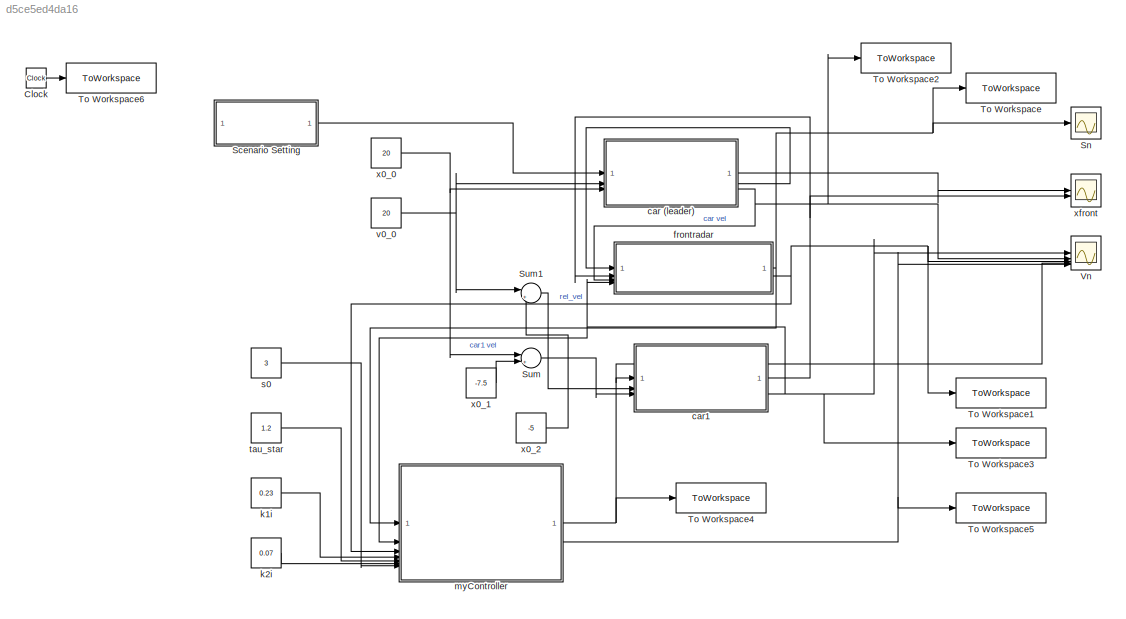
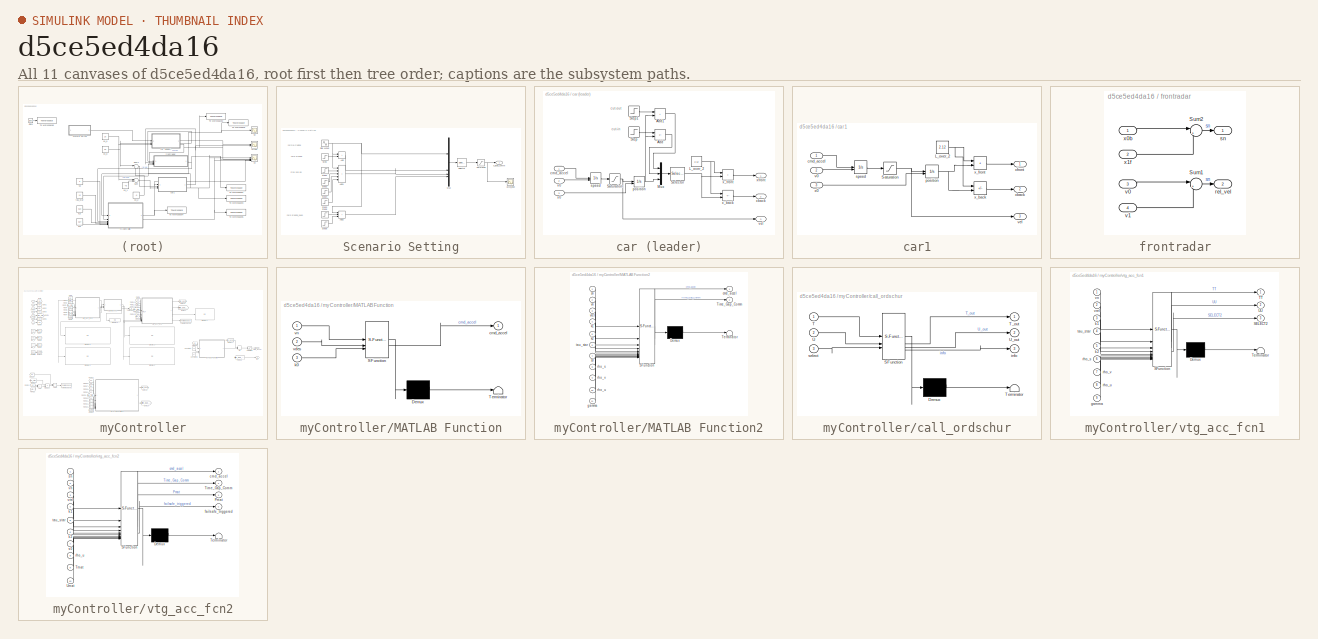
[diagram: thumbnail index - all 11 canvases of the model, root first then tree order]
MODEL slx_d5ce5ed4da16
KIND model
CONFIG AbsTol = auto
CONFIG EnableMultiTasking = off
CONFIG FixedStep = 0.05
CONFIG InitFcn = % Clear the build folder (slprj) to force a recompile of C-code\nif exist('slprj', 'dir')\n    rmdir('slprj', 's'); \n    fprintf('### Build cache cleared. Rebuilding C-code...\n');\nend
CONFIG MaxStep = auto
CONFIG MinStep = auto
CONFIG RelTol = 1e-3
CONFIG SampleTimeConstraint = Unconstrained
CONFIG SolverName = FixedStepAuto
CONFIG StartTime = 0.0
CONFIG StopTime = 50
BLOCK [Clock] Clock
  Decimation = 1
BLOCK [SubSystem] Scenario Setting
BLOCK [Sum] Scenario Setting/Add
  IconShape = rectangular
BLOCK [Sum] Scenario Setting/Add1
  IconShape = rectangular
  Inputs = +++++
BLOCK [Sum] Scenario Setting/Add2
  IconShape = rectangular
  Inputs = +++
BLOCK [Mux] Scenario Setting/Mux
  DisplayOption = bar
BLOCK [Saturate] Scenario Setting/Saturation
  LowerLimit = -3
  UpperLimit = 1.5
BLOCK [Selector] Scenario Setting/Selector
  IndexOptions = Index vector (dialog)
  Indices = 3
  InputPortWidth = 4
  OutputSizes = 1
BLOCK [Sin] Scenario Setting/Sine Wave
  Amplitude = 0.25
  SampleTime = 0
BLOCK [Step] Scenario Setting/Step
  After = -2.5
  SampleTime = 0
  Time = 25
BLOCK [Step] Scenario Setting/Step1
  After = -2
  SampleTime = 0
  Time = 15
BLOCK [Step] Scenario Setting/Step2
  After = 2
  SampleTime = 0
  Time = 25
BLOCK [Step] Scenario Setting/Step3
  After = -2
  SampleTime = 0
  Time = 37
BLOCK [Step] Scenario Setting/Step4
  After = 2
  SampleTime = 0
  Time = 27
BLOCK [Step] Scenario Setting/Step5
  After = -4
  SampleTime = 0
  Time = 25
BLOCK [Step] Scenario Setting/Step6
  After = 4
  SampleTime = 0
  Time = 28
BLOCK [Outport] Scenario Setting/a_lead_comm
BLOCK [Scope] Scenario Setting/accel_lead
  Floating = off
  NumInputPorts = 1
  ScopeSpecificationString = Simulink.scopes.TimeScopeBlockCfg('CurrentConfiguration', extmgr.ConfigurationSet(extmgr.Configuration('Core','General UI',true,'FigureColor',[0.129411764705882 0.129411764705882 0.129411764705882]),extmgr.Configuration('Core','Source UI',true),extmgr.Configuration('Sources','WiredSimulink',true,'DataLoggingVariableName','ScopeData2'),extmgr.Configuration('Visuals','Time Domain',true,'SerializedDi...<+1842ch>
BLOCK [Scope] Sn
  Floating = off
  NumInputPorts = 1
  ScopeSpecificationString = Simulink.scopes.TimeScopeBlockCfg('CurrentConfiguration', extmgr.ConfigurationSet(extmgr.Configuration('Core','General UI',true,'FigureColor',[0.129411764705882 0.129411764705882 0.129411764705882]),extmgr.Configuration('Core','Source UI',true),extmgr.Configuration('Sources','WiredSimulink',true),extmgr.Configuration('Visuals','Time Domain',true,'SerializedDisplays',{struct('MinYLimReal','-0.32815...<+1816ch>
BLOCK [Sum] Sum
  Inputs = |++
BLOCK [Sum] Sum1
  Inputs = |++
BLOCK [ToWorkspace] To Workspace
  FixptAsFi = on
  MaxDataPoints = inf
  SampleTime = -1
  VariableName = sn
BLOCK [ToWorkspace] To Workspace1
  FixptAsFi = on
  MaxDataPoints = inf
  SampleTime = -1
  VariableName = rel_vel
BLOCK [ToWorkspace] To Workspace2
  FixptAsFi = on
  MaxDataPoints = inf
  SampleTime = -1
  VariableName = car_vel
BLOCK [ToWorkspace] To Workspace3
  FixptAsFi = on
  MaxDataPoints = inf
  SampleTime = -1
  VariableName = car1_vel
BLOCK [ToWorkspace] To Workspace4
  FixptAsFi = on
  MaxDataPoints = inf
  SampleTime = -1
  VariableName = cmd_accel
BLOCK [ToWorkspace] To Workspace5
  FixptAsFi = on
  MaxDataPoints = inf
  SampleTime = -1
  VariableName = tau_i
BLOCK [ToWorkspace] To Workspace6
  FixptAsFi = on
  MaxDataPoints = inf
  SampleTime = -1
  VariableName = t
BLOCK [Scope] Vn
  Floating = off
  NumInputPorts = 5
  ScopeSpecificationString = Simulink.scopes.TimeScopeBlockCfg('CurrentConfiguration', extmgr.ConfigurationSet(extmgr.Configuration('Core','General UI',true,'FigureColor',[0.129411764705882 0.129411764705882 0.129411764705882]),extmgr.Configuration('Core','Source UI',true),extmgr.Configuration('Sources','WiredSimulink',true,'DataLoggingVariableName','ScopeData1'),extmgr.Configuration('Visuals','Time Domain',true,'SerializedDi...<+2395ch>
BLOCK [SubSystem] car (leader)
BLOCK [Sum] car (leader)/Add
  IconShape = rectangular
  Inputs = -+
BLOCK [Sum] car (leader)/Add1
  IconShape = rectangular
BLOCK [Constant] car (leader)/L_over_2
  Value = 2.12
BLOCK [Mux] car (leader)/Mux
  DisplayOption = bar
  Inputs = 3
BLOCK [Saturate] car (leader)/Saturation
  LowerLimit = 0
  UpperLimit = inf
BLOCK [Selector] car (leader)/Selector
  IndexOptions = Index vector (dialog)
  Indices = 3
  InputPortWidth = 3
  OutputSizes = 1
BLOCK [Step] car (leader)/Step
  After = 15
  SampleTime = 0
  Time = 20
BLOCK [Step] car (leader)/Step1
  After = 100
  SampleTime = 0
  Time = 20
BLOCK [Inport] car (leader)/cmd_accel
BLOCK [Integrator] car (leader)/position
  InitialConditionSource = external
BLOCK [Integrator] car (leader)/speed
  InitialConditionSource = external
BLOCK [Inport] car (leader)/v0
  Port = 2
BLOCK [Outport] car (leader)/vel
  Port = 3
BLOCK [Inport] car (leader)/x0
  Port = 3
BLOCK [Sum] car (leader)/x_back
  IconShape = rectangular
  Inputs = -+
BLOCK [Sum] car (leader)/x_front
  IconShape = rectangular
BLOCK [Outport] car (leader)/xback
  Port = 2
BLOCK [Outport] car (leader)/xfront
BLOCK [SubSystem] car1
BLOCK [Constant] car1/L_over_2
  Value = 2.12
BLOCK [Saturate] car1/Saturation
  LowerLimit = 0
  UpperLimit = inf
BLOCK [Inport] car1/cmd_accel
BLOCK [Integrator] car1/position
  InitialConditionSource = external
BLOCK [Integrator] car1/speed
  InitialConditionSource = external
BLOCK [Inport] car1/v0
  Port = 2
BLOCK [Outport] car1/vel
  Port = 3
BLOCK [Inport] car1/x0
  Port = 3
BLOCK [Sum] car1/x_back
  IconShape = rectangular
  Inputs = -+
BLOCK [Sum] car1/x_front
  IconShape = rectangular
BLOCK [Outport] car1/xback
  Port = 2
BLOCK [Outport] car1/xfront
BLOCK [SubSystem] frontradar
BLOCK [Sum] frontradar/Sum1
  Inputs = |+-
BLOCK [Sum] frontradar/Sum2
  Inputs = |+-
BLOCK [Outport] frontradar/rel_vel
  Port = 2
BLOCK [Outport] frontradar/sn
BLOCK [Inport] frontradar/v0
  Port = 3
BLOCK [Inport] frontradar/v1
  Port = 4
BLOCK [Inport] frontradar/x0b
BLOCK [Inport] frontradar/x1f
  Port = 2
BLOCK [Constant] k1i
  Value = 0.23
BLOCK [Constant] k2i
  Value = 0.07
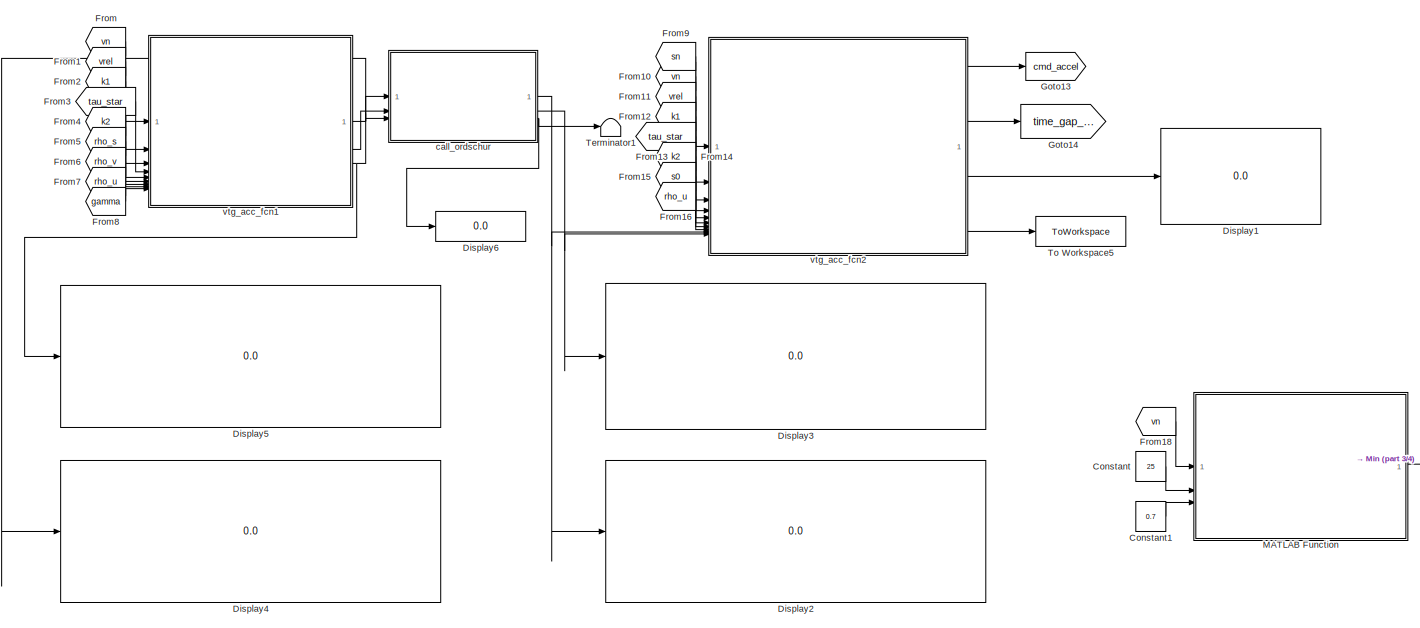
[diagram: myController - part 1/4, top center region]
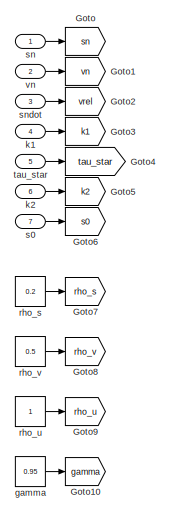
[diagram: myController - part 2/4, top left region]
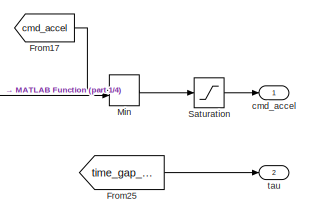
[diagram: myController - part 3/4, middle right region]
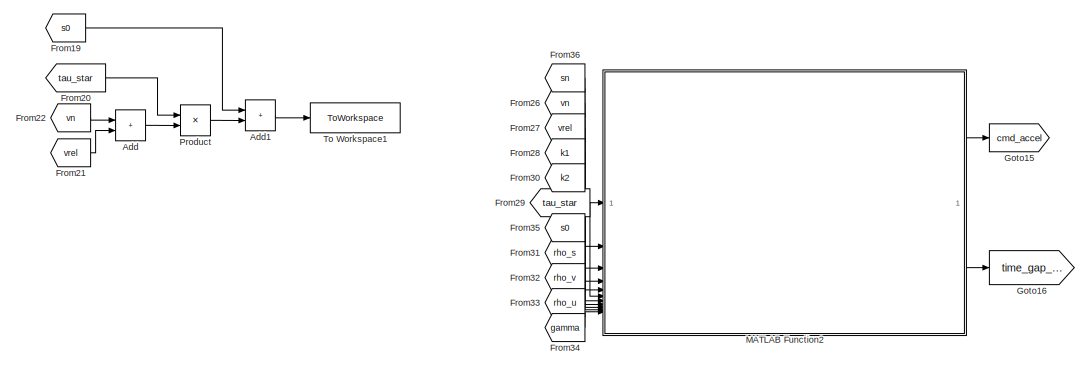
[diagram: myController - part 4/4, bottom left region]
BLOCK [SubSystem] myController
BLOCK [Sum] myController/Add
  IconShape = rectangular
BLOCK [Sum] myController/Add1
  IconShape = rectangular
BLOCK [Constant] myController/Constant
  Value = 25
BLOCK [Constant] myController/Constant1
  Value = 0.7
BLOCK [Display] myController/Display1
  Decimation = 1
BLOCK [Display] myController/Display2
  Decimation = 1
BLOCK [Display] myController/Display3
  Decimation = 1
BLOCK [Display] myController/Display4
  Decimation = 1
BLOCK [Display] myController/Display5
  Decimation = 1
BLOCK [Display] myController/Display6
  Decimation = 1
BLOCK [From] myController/From
  GotoTag = vn
BLOCK [From] myController/From1
  GotoTag = vrel
BLOCK [From] myController/From10
  GotoTag = vn
BLOCK [From] myController/From11
  GotoTag = vrel
BLOCK [From] myController/From12
  GotoTag = k1
BLOCK [From] myController/From13
  GotoTag = tau_star
BLOCK [From] myController/From14
  GotoTag = k2
BLOCK [From] myController/From15
  GotoTag = s0
BLOCK [From] myController/From16
  GotoTag = rho_u
BLOCK [From] myController/From17
  GotoTag = cmd_accel
BLOCK [From] myController/From18
  GotoTag = vn
BLOCK [From] myController/From19
  GotoTag = s0
BLOCK [From] myController/From2
  GotoTag = k1
BLOCK [From] myController/From20
  GotoTag = tau_star
BLOCK [From] myController/From21
  GotoTag = vrel
BLOCK [From] myController/From22
  GotoTag = vn
BLOCK [From] myController/From25
  GotoTag = time_gap_comm
BLOCK [From] myController/From26
  Commented = on
  GotoTag = vn
BLOCK [From] myController/From27
  Commented = on
  GotoTag = vrel
BLOCK [From] myController/From28
  Commented = on
  GotoTag = k1
BLOCK [From] myController/From29
  Commented = on
  GotoTag = tau_star
BLOCK [From] myController/From3
  GotoTag = tau_star
BLOCK [From] myController/From30
  Commented = on
  GotoTag = k2
BLOCK [From] myController/From31
  Commented = on
  GotoTag = rho_s
BLOCK [From] myController/From32
  Commented = on
  GotoTag = rho_v
BLOCK [From] myController/From33
  Commented = on
  GotoTag = rho_u
BLOCK [From] myController/From34
  Commented = on
  GotoTag = gamma
BLOCK [From] myController/From35
  Commented = on
  GotoTag = s0
BLOCK [From] myController/From36
  Commented = on
  GotoTag = sn
BLOCK [From] myController/From4
  GotoTag = k2
BLOCK [From] myController/From5
  GotoTag = rho_s
BLOCK [From] myController/From6
  GotoTag = rho_v
BLOCK [From] myController/From7
  GotoTag = rho_u
BLOCK [From] myController/From8
  GotoTag = gamma
BLOCK [From] myController/From9
  GotoTag = sn
BLOCK [Goto] myController/Goto
  GotoTag = sn
BLOCK [Goto] myController/Goto1
  GotoTag = vn
BLOCK [Goto] myController/Goto10
  GotoTag = gamma
BLOCK [Goto] myController/Goto13
  GotoTag = cmd_accel
BLOCK [Goto] myController/Goto14
  GotoTag = time_gap_comm
BLOCK [Goto] myController/Goto15
  Commented = on
  GotoTag = cmd_accel
BLOCK [Goto] myController/Goto16
  Commented = on
  GotoTag = time_gap_comm
BLOCK [Goto] myController/Goto2
  GotoTag = vrel
BLOCK [Goto] myController/Goto3
  GotoTag = k1
BLOCK [Goto] myController/Goto4
  GotoTag = tau_star
BLOCK [Goto] myController/Goto5
  GotoTag = k2
BLOCK [Goto] myController/Goto6
  GotoTag = s0
BLOCK [Goto] myController/Goto7
  GotoTag = rho_s
BLOCK [Goto] myController/Goto8
  GotoTag = rho_v
BLOCK [Goto] myController/Goto9
  GotoTag = rho_u
BLOCK [SubSystem] myController/MATLAB Function
  ErrorFcn = Stateflow.Translate.translate
  PermitHierarchicalResolution = ExplicitOnly
  SFBlockType = MATLAB Function
  TreatAsAtomicUnit = on
BLOCK [Demux] myController/MATLAB Function/ Demux 
  Outputs = 1
BLOCK [S-Function] myController/MATLAB Function/ SFunction 
  EnableBusSupport = on
  FunctionName = sf_sfun
  PortCounts = [3 2]
  SFcnIsStateOwnerBlock = off
  SFunctionDeploymentMode = off
  Tag = Stateflow S-Function 2
BLOCK [Terminator] myController/MATLAB Function/ Terminator 
BLOCK [Outport] myController/MATLAB Function/cmd_accel
BLOCK [Inport] myController/MATLAB Function/k0
  Port = 3
BLOCK [Inport] myController/MATLAB Function/vdes
  Port = 2
BLOCK [Inport] myController/MATLAB Function/vn
BLOCK [SubSystem] myController/MATLAB Function2
  Commented = on
  ErrorFcn = Stateflow.Translate.translate
  PermitHierarchicalResolution = ExplicitOnly
  SFBlockType = MATLAB Function
  TreatAsAtomicUnit = on
BLOCK [Demux] myController/MATLAB Function2/ Demux 
  Outputs = 1
BLOCK [S-Function] myController/MATLAB Function2/ SFunction 
  EnableBusSupport = on
  FunctionName = sf_sfun
  PortCounts = [11 3]
  SFcnIsStateOwnerBlock = off
  SFunctionDeploymentMode = off
  Tag = Stateflow S-Function 3
BLOCK [Terminator] myController/MATLAB Function2/ Terminator 
BLOCK [Outport] myController/MATLAB Function2/Time_Gap_Comm
  Port = 2
BLOCK [Outport] myController/MATLAB Function2/cmd_accel
BLOCK [Inport] myController/MATLAB Function2/gamma
  Port = 11
BLOCK [Inport] myController/MATLAB Function2/k1
  Port = 4
BLOCK [Inport] myController/MATLAB Function2/k2
  Port = 5
BLOCK [Inport] myController/MATLAB Function2/rho_s
  Port = 8
BLOCK [Inport] myController/MATLAB Function2/rho_u
  Port = 10
BLOCK [Inport] myController/MATLAB Function2/rho_v
  Port = 9
BLOCK [Inport] myController/MATLAB Function2/s0
  Port = 7
BLOCK [Inport] myController/MATLAB Function2/sn
BLOCK [Inport] myController/MATLAB Function2/tau_star
  Port = 6
BLOCK [Inport] myController/MATLAB Function2/vn
  Port = 2
BLOCK [Inport] myController/MATLAB Function2/vrel
  Port = 3
BLOCK [MinMax] myController/Min
  Inputs = 2
BLOCK [Product] myController/Product
BLOCK [Saturate] myController/Saturation
  LowerLimit = -3
  UpperLimit = 1.5
BLOCK [Terminator] myController/Terminator1
BLOCK [ToWorkspace] myController/To Workspace1
  FixptAsFi = on
  MaxDataPoints = inf
  SampleTime = -1
  VariableName = desired_gap
BLOCK [ToWorkspace] myController/To Workspace5
  FixptAsFi = on
  MaxDataPoints = inf
  SampleTime = -1
  VariableName = failsafe_flag
BLOCK [SubSystem] myController/call_ordschur
  ErrorFcn = Stateflow.Translate.translate
  PermitHierarchicalResolution = ExplicitOnly
  SFBlockType = MATLAB Function
  TreatAsAtomicUnit = on
BLOCK [Demux] myController/call_ordschur/ Demux 
  Outputs = 1
BLOCK [S-Function] myController/call_ordschur/ SFunction 
  EnableBusSupport = on
  FunctionName = sf_sfun
  PortCounts = [3 4]
  SFcnIsStateOwnerBlock = off
  SFunctionDeploymentMode = off
  Tag = Stateflow S-Function 4
BLOCK [Terminator] myController/call_ordschur/ Terminator 
BLOCK [Inport] myController/call_ordschur/T
BLOCK [Outport] myController/call_ordschur/T_out
BLOCK [Inport] myController/call_ordschur/U
  Port = 2
BLOCK [Outport] myController/call_ordschur/U_out
  Port = 2
BLOCK [Outport] myController/call_ordschur/info
  Port = 3
BLOCK [Inport] myController/call_ordschur/select
  Port = 3
BLOCK [Outport] myController/cmd_accel
BLOCK [Constant] myController/gamma
  Value = 0.95
BLOCK [Inport] myController/k1
  Port = 4
BLOCK [Inport] myController/k2
  Port = 6
BLOCK [Constant] myController/rho_s
  Value = 0.2
BLOCK [Constant] myController/rho_u
BLOCK [Constant] myController/rho_v
  Value = 0.5
BLOCK [Inport] myController/s0
  Port = 7
BLOCK [Inport] myController/sn
BLOCK [Inport] myController/sndot
  Port = 3
BLOCK [Outport] myController/tau
  Port = 2
BLOCK [Inport] myController/tau_star
  Port = 5
BLOCK [Inport] myController/vn
  Port = 2
BLOCK [SubSystem] myController/vtg_acc_fcn1
  ErrorFcn = Stateflow.Translate.translate
  LibrarySourceBlock = simulink/User-Defined\nFunctions/MATLAB Function
  PermitHierarchicalResolution = ExplicitOnly
  SFBlockType = MATLAB Function
  TreatAsAtomicUnit = on
BLOCK [Demux] myController/vtg_acc_fcn1/ Demux 
  Outputs = 1
BLOCK [S-Function] myController/vtg_acc_fcn1/ SFunction 
  EnableBusSupport = on
  FunctionName = sf_sfun
  PortCounts = [9 4]
  SFcnIsStateOwnerBlock = off
  SFunctionDeploymentMode = off
  Tag = Stateflow S-Function 1
BLOCK [Terminator] myController/vtg_acc_fcn1/ Terminator 
BLOCK [Outport] myController/vtg_acc_fcn1/SELECT2
  Port = 3
BLOCK [Outport] myController/vtg_acc_fcn1/TT
BLOCK [Outport] myController/vtg_acc_fcn1/UU
  Port = 2
BLOCK [Inport] myController/vtg_acc_fcn1/gamma
  Port = 9
BLOCK [Inport] myController/vtg_acc_fcn1/k1
  Port = 3
BLOCK [Inport] myController/vtg_acc_fcn1/k2
  Port = 5
BLOCK [Inport] myController/vtg_acc_fcn1/rho_s
  Port = 6
BLOCK [Inport] myController/vtg_acc_fcn1/rho_u
  Port = 8
BLOCK [Inport] myController/vtg_acc_fcn1/rho_v
  Port = 7
BLOCK [Inport] myController/vtg_acc_fcn1/tau_star
  Port = 4
BLOCK [Inport] myController/vtg_acc_fcn1/vn
BLOCK [Inport] myController/vtg_acc_fcn1/vrel
  Port = 2
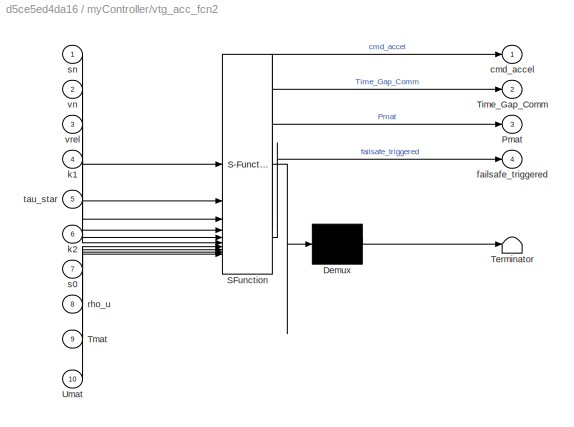
BLOCK [SubSystem] myController/vtg_acc_fcn2
  ErrorFcn = Stateflow.Translate.translate
  LibrarySourceBlock = simulink/User-Defined\nFunctions/MATLAB Function
  PermitHierarchicalResolution = ExplicitOnly
  SFBlockType = MATLAB Function
  TreatAsAtomicUnit = on
BLOCK [Demux] myController/vtg_acc_fcn2/ Demux 
  Outputs = 1
BLOCK [S-Function] myController/vtg_acc_fcn2/ SFunction 
  EnableBusSupport = on
  FunctionName = sf_sfun
  PortCounts = [10 5]
  SFcnIsStateOwnerBlock = off
  SFunctionDeploymentMode = off
  Tag = Stateflow S-Function 5
BLOCK [Terminator] myController/vtg_acc_fcn2/ Terminator 
BLOCK [Outport] myController/vtg_acc_fcn2/Pmat
  Port = 3
BLOCK [Outport] myController/vtg_acc_fcn2/Time_Gap_Comm
  Port = 2
BLOCK [Inport] myController/vtg_acc_fcn2/Tmat
  Port = 9
BLOCK [Inport] myController/vtg_acc_fcn2/Umat
  Port = 10
BLOCK [Outport] myController/vtg_acc_fcn2/cmd_accel
BLOCK [Outport] myController/vtg_acc_fcn2/failsafe_triggered
  Port = 4
BLOCK [Inport] myController/vtg_acc_fcn2/k1
  Port = 4
BLOCK [Inport] myController/vtg_acc_fcn2/k2
  Port = 6
BLOCK [Inport] myController/vtg_acc_fcn2/rho_u
  Port = 8
BLOCK [Inport] myController/vtg_acc_fcn2/s0
  Port = 7
BLOCK [Inport] myController/vtg_acc_fcn2/sn
BLOCK [Inport] myController/vtg_acc_fcn2/tau_star
  Port = 5
BLOCK [Inport] myController/vtg_acc_fcn2/vn
  Port = 2
BLOCK [Inport] myController/vtg_acc_fcn2/vrel
  Port = 3
BLOCK [Constant] s0
  Value = 3
BLOCK [Constant] tau_star
  Value = 1.2
BLOCK [Constant] v0_0
  Value = 20
BLOCK [Constant] x0_0
  Value = 20
BLOCK [Constant] x0_1
  Value = -7.5
BLOCK [Constant] x0_2
  Value = -5
BLOCK [Scope] xfront
  Floating = off
  NumInputPorts = 2
  ScopeSpecificationString = Simulink.scopes.TimeScopeBlockCfg('CurrentConfiguration', extmgr.ConfigurationSet(extmgr.Configuration('Core','General UI',true,'FigureColor',[0.129411764705882 0.129411764705882 0.129411764705882]),extmgr.Configuration('Core','Source UI',true),extmgr.Configuration('Sources','WiredSimulink',true,'DataLoggingVariableName','ScopeData1'),extmgr.Configuration('Visuals','Time Domain',true,'SerializedDi...<+1915ch>
ANNOTATION Scenario Setting: hard braking
ANNOTATION Scenario Setting: hard braking_pulse
ANNOTATION Scenario Setting: normal cruising
ANNOTATION Scenario Setting: stop and go
ANNOTATION car (leader): cut-in
ANNOTATION car (leader): cut-out
LINE Clock:1 -> To Workspace6:1
LINE Scenario Setting/Add1:1 -> Scenario Setting/Mux:3
LINE Scenario Setting/Add2:1 -> Scenario Setting/Mux:4
LINE Scenario Setting/Add:1 -> Scenario Setting/Mux:2
LINE Scenario Setting/Mux:1 -> Scenario Setting/Selector:1
NET Scenario Setting/Saturation:1 -> Scenario Setting/a_lead_comm:1, Scenario Setting/accel_lead:1
LINE Scenario Setting/Selector:1 -> Scenario Setting/Saturation:1
NET Scenario Setting/Sine Wave:1 -> Scenario Setting/Add1:1, Scenario Setting/Add2:1, Scenario Setting/Add:1, Scenario Setting/Mux:1
LINE Scenario Setting/Step1:1 -> Scenario Setting/Add1:2
LINE Scenario Setting/Step2:1 -> Scenario Setting/Add1:3
LINE Scenario Setting/Step3:1 -> Scenario Setting/Add1:5
LINE Scenario Setting/Step4:1 -> Scenario Setting/Add1:4
LINE Scenario Setting/Step5:1 -> Scenario Setting/Add2:2
LINE Scenario Setting/Step6:1 -> Scenario Setting/Add2:3
LINE Scenario Setting/Step:1 -> Scenario Setting/Add:2
LINE Scenario Setting:1 -> car (leader):1
LINE Sum1:1 -> car1:2
LINE Sum:1 -> car1:3
LINE car (leader)/Add1:1 -> car (leader)/Mux:1
LINE car (leader)/Add:1 -> car (leader)/Mux:2
NET car (leader)/L_over_2:1 -> car (leader)/x_back:1, car (leader)/x_front:1
LINE car (leader)/Mux:1 -> car (leader)/Selector:1
NET car (leader)/Saturation:1 -> car (leader)/position:1, car (leader)/vel:1
NET car (leader)/Selector:1 -> car (leader)/x_back:2, car (leader)/x_front:2
LINE car (leader)/Step1:1 -> car (leader)/Add1:1
LINE car (leader)/Step:1 -> car (leader)/Add:1
LINE car (leader)/cmd_accel:1 -> car (leader)/speed:1
NET car (leader)/position:1 -> car (leader)/Add1:2, car (leader)/Add:2, car (leader)/Mux:3
LINE car (leader)/speed:1 -> car (leader)/Saturation:1
LINE car (leader)/v0:1 -> car (leader)/speed:2
LINE car (leader)/x0:1 -> car (leader)/position:2
LINE car (leader)/x_back:1 -> car (leader)/xback:1
LINE car (leader)/x_front:1 -> car (leader)/xfront:1
LINE car (leader):1 -> xfront:1
LINE car (leader):2 -> frontradar:1
NET car (leader):3 -> To Workspace2:1, Vn:2, frontradar:3
NET car1/L_over_2:1 -> car1/x_back:1, car1/x_front:1
NET car1/Saturation:1 -> car1/position:1, car1/vel:1
LINE car1/cmd_accel:1 -> car1/speed:1
NET car1/position:1 -> car1/x_back:2, car1/x_front:2
LINE car1/speed:1 -> car1/Saturation:1
LINE car1/v0:1 -> car1/speed:2
LINE car1/x0:1 -> car1/position:2
LINE car1/x_back:1 -> car1/xback:1
LINE car1/x_front:1 -> car1/xfront:1
NET car1:1 -> frontradar:2, xfront:2
NET car1:3 -> To Workspace3:1, Vn:1, frontradar:4, myController:2
LINE frontradar/Sum1:1 -> frontradar/rel_vel:1
LINE frontradar/Sum2:1 -> frontradar/sn:1
LINE frontradar/v0:1 -> frontradar/Sum1:1
LINE frontradar/v1:1 -> frontradar/Sum1:2
LINE frontradar/x0b:1 -> frontradar/Sum2:1
LINE frontradar/x1f:1 -> frontradar/Sum2:2
NET frontradar:1 -> Sn:1, To Workspace:1, myController:1
NET frontradar:2 -> To Workspace1:1, Vn:3, myController:3
LINE k1i:1 -> myController:4
LINE k2i:1 -> myController:6
LINE myController/Add1:1 -> myController/To Workspace1:1
LINE myController/Add:1 -> myController/Product:2
LINE myController/Constant1:1 -> myController/MATLAB Function:3
LINE myController/Constant:1 -> myController/MATLAB Function:2
LINE myController/From10:1 -> myController/vtg_acc_fcn2:2
LINE myController/From11:1 -> myController/vtg_acc_fcn2:3
LINE myController/From12:1 -> myController/vtg_acc_fcn2:4
LINE myController/From13:1 -> myController/vtg_acc_fcn2:5
LINE myController/From14:1 -> myController/vtg_acc_fcn2:6
LINE myController/From15:1 -> myController/vtg_acc_fcn2:7
LINE myController/From16:1 -> myController/vtg_acc_fcn2:8
LINE myController/From17:1 -> myController/Min:1
LINE myController/From18:1 -> myController/MATLAB Function:1
LINE myController/From19:1 -> myController/Add1:1
LINE myController/From1:1 -> myController/vtg_acc_fcn1:2
LINE myController/From20:1 -> myController/Product:1
LINE myController/From21:1 -> myController/Add:2
LINE myController/From22:1 -> myController/Add:1
LINE myController/From25:1 -> myController/tau:1
LINE myController/From26:1 -> myController/MATLAB Function2:2
LINE myController/From27:1 -> myController/MATLAB Function2:3
LINE myController/From28:1 -> myController/MATLAB Function2:4
LINE myController/From29:1 -> myController/MATLAB Function2:6
LINE myController/From2:1 -> myController/vtg_acc_fcn1:3
LINE myController/From30:1 -> myController/MATLAB Function2:5
LINE myController/From31:1 -> myController/MATLAB Function2:8
LINE myController/From32:1 -> myController/MATLAB Function2:9
LINE myController/From33:1 -> myController/MATLAB Function2:10
LINE myController/From34:1 -> myController/MATLAB Function2:11
LINE myController/From35:1 -> myController/MATLAB Function2:7
LINE myController/From36:1 -> myController/MATLAB Function2:1
LINE myController/From3:1 -> myController/vtg_acc_fcn1:4
LINE myController/From4:1 -> myController/vtg_acc_fcn1:5
LINE myController/From5:1 -> myController/vtg_acc_fcn1:6
LINE myController/From6:1 -> myController/vtg_acc_fcn1:7
LINE myController/From7:1 -> myController/vtg_acc_fcn1:8
LINE myController/From8:1 -> myController/vtg_acc_fcn1:9
LINE myController/From9:1 -> myController/vtg_acc_fcn2:1
LINE myController/From:1 -> myController/vtg_acc_fcn1:1
LINE myController/MATLAB Function2:1 -> myController/Goto15:1
LINE myController/MATLAB Function2:2 -> myController/Goto16:1
LINE myController/MATLAB Function:1 -> myController/Min:2
LINE myController/Min:1 -> myController/Saturation:1
LINE myController/Product:1 -> myController/Add1:2
LINE myController/Saturation:1 -> myController/cmd_accel:1
NET myController/call_ordschur:1 -> myController/Display2:1, myController/vtg_acc_fcn2:9
NET myController/call_ordschur:2 -> myController/Display3:1, myController/vtg_acc_fcn2:10
NET myController/call_ordschur:3 -> myController/Display6:1, myController/Terminator1:1
LINE myController/gamma:1 -> myController/Goto10:1
LINE myController/k1:1 -> myController/Goto3:1
LINE myController/k2:1 -> myController/Goto5:1
LINE myController/rho_s:1 -> myController/Goto7:1
LINE myController/rho_u:1 -> myController/Goto9:1
LINE myController/rho_v:1 -> myController/Goto8:1
LINE myController/s0:1 -> myController/Goto6:1
LINE myController/sn:1 -> myController/Goto:1
LINE myController/sndot:1 -> myController/Goto2:1
LINE myController/tau_star:1 -> myController/Goto4:1
LINE myController/vn:1 -> myController/Goto1:1
NET myController/vtg_acc_fcn1:1 -> myController/Display4:1, myController/call_ordschur:1
LINE myController/vtg_acc_fcn1:2 -> myController/call_ordschur:2
NET myController/vtg_acc_fcn1:3 -> myController/Display5:1, myController/call_ordschur:3
LINE myController/vtg_acc_fcn2:1 -> myController/Goto13:1
LINE myController/vtg_acc_fcn2:2 -> myController/Goto14:1
LINE myController/vtg_acc_fcn2:3 -> myController/Display1:1
LINE myController/vtg_acc_fcn2:4 -> myController/To Workspace5:1
NET myController:1 -> To Workspace4:1, Vn:4, car1:1
NET myController:2 -> To Workspace5:1, Vn:5
LINE s0:1 -> myController:7
LINE tau_star:1 -> myController:5
NET v0_0:1 -> Sum1:1, car (leader):2
NET x0_0:1 -> Sum:1, car (leader):3
LINE x0_1:1 -> Sum:2
LINE x0_2:1 -> Sum1:2
note: NET lines group one-source signal fan-out (src -> all destinations, sorted); 1:1 wires keep LINE
CHART myController/vtg_acc_fcn1 states=1 transitions=1
  STATE_LABEL 'eML_blk_kernel()'
  STATE_LABEL "SCRIPT:\nfunction [TT, UU, SELECT2] = vtg_acc_fcn1(vn, vrel, k1, tau_star, k2, rho_s, rho_v, rho_u, gamma)\nAsys = [0 -1; k1 (-k1*tau_star-k2)];\nBdist = [1; k2];\nCsys = [rho_s 0; 0 rho_v; 0 0];\nRu = rho_u^2;\nRmat = [-1/gamma^2 0; 0 inv(Ru)];\n\nve = vrel + vn;\nBctrl = [0; -k1*ve];\n\nBsys = [Bdist, Bctrl];\nQmat = Csys'*Csys;\n\n% --- Replacement for icare(A, B, Q, R) -----------------------------------\nZ ...<+472ch>"
CHART myController/MATLAB Function states=1 transitions=1
  STATE_LABEL 'eML_blk_kernel()'
  STATE_LABEL 'SCRIPT:\nfunction cmd_accel = free_flow_fcn(vn, vdes, k0)\n\ncmd_accel = k0 * (vdes - vn);\n\nend\n'
CHART myController/MATLAB Function2 states=1 transitions=1
  STATE_LABEL 'eML_blk_kernel()'
  STATE_LABEL "SCRIPT:\nfunction [cmd_accel, Time_Gap_Comm] = vtg_acc_fcn_all(sn, vn, vrel, k1, k2, tau_star, s0, rho_s, rho_v, rho_u, gamma)\n% VTG_ACC_FCN  Adaptive Cruise Controller — code-generation compatible.\n%\n%   Replaces icare() with a closed-form bisection solver for the 2x2\n%   H-infinity CARE:  A'P + PA + P*S*P + Q = 0\n%\n%   INPUTS\n%     sn        - measured gap to leader          [m]\n%     vn        -...<+3608ch>"
CHART myController/call_ordschur states=1 transitions=1
  STATE_LABEL 'eML_blk_kernel()'
  STATE_LABEL 'SCRIPT:\nfunction [T_out, U_out, info] = call_ordschur(T, U, select)\n%#codegen\ncoder.cinclude(\'ordschur_wrapper.h\');\n\nn = size(T,1);\n\nT_out = T;\nU_out = U;\n\ninfo = int32(0);\n\ninfo = coder.ceval(\'ordschur_reorder\', ...\n    int32(n), ...\n    coder.ref(T_out), ...\n    coder.ref(U_out), ...\n    coder.rref(select) );\n\n% For Simulink\ncustomDir = "<userpath><path><+174ch>'
CHART myController/vtg_acc_fcn2 states=1 transitions=1
  STATE_LABEL 'eML_blk_kernel()'
  STATE_LABEL 'SCRIPT:\nfunction [cmd_accel, Time_Gap_Comm, Pmat, failsafe_triggered] = vtg_acc_fcn2(sn, vn, vrel, k1, tau_star, k2, s0, rho_u, Tmat, Umat)\ncmd_accel = 0; Time_Gap_Comm= 0; failsafe_triggered = false;\nRu = rho_u^2;\n\nve = vrel + vn;\ns_err = sn - (s0+tau_star*ve);\nv_err = vn - ve;\n\n% --- Replacement for icare(A, B, Q, R) -----------------------------------\n% diagT = diag(Tmat);\nPmat = zeros(2, 2);\n[...<+693ch>'
CHART  states=0 transitions=0
CHART  states=0 transitions=0
CHART  states=0 transitions=0
CHART  states=0 transitions=0
CHART  states=0 transitions=0
note: 1 file-system path scrubbed to <path> (not preserved elsewhere — flat text is the only slx artifact)
